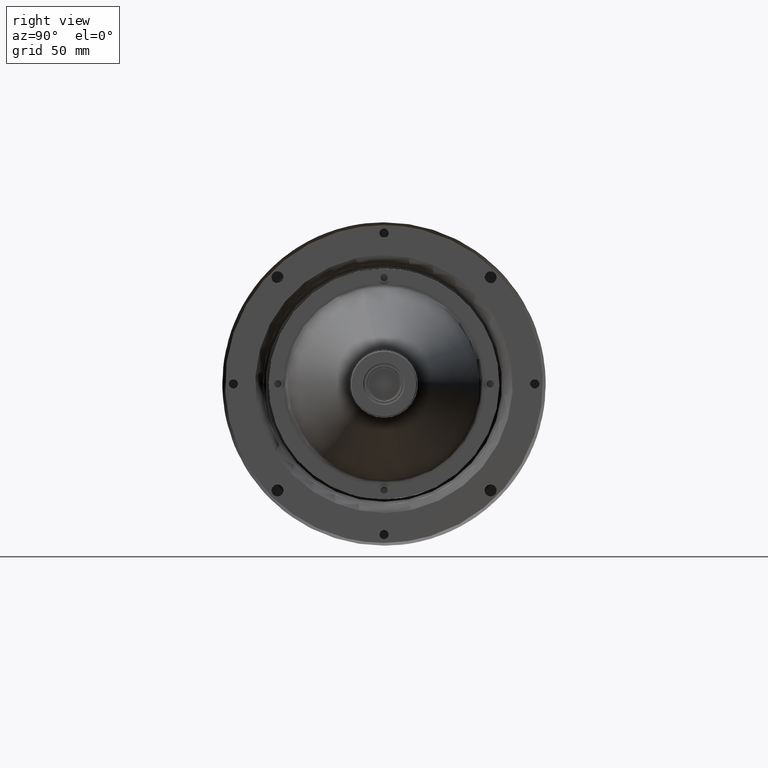
[diagram: clean part render]
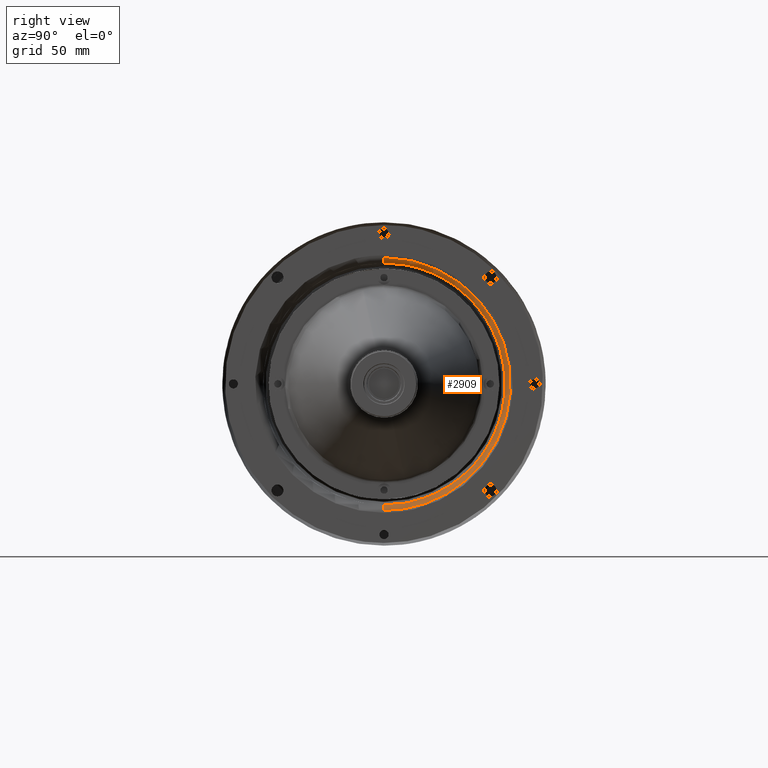
[diagram: same view with one face highlighted and labeled with its STEP entity id]
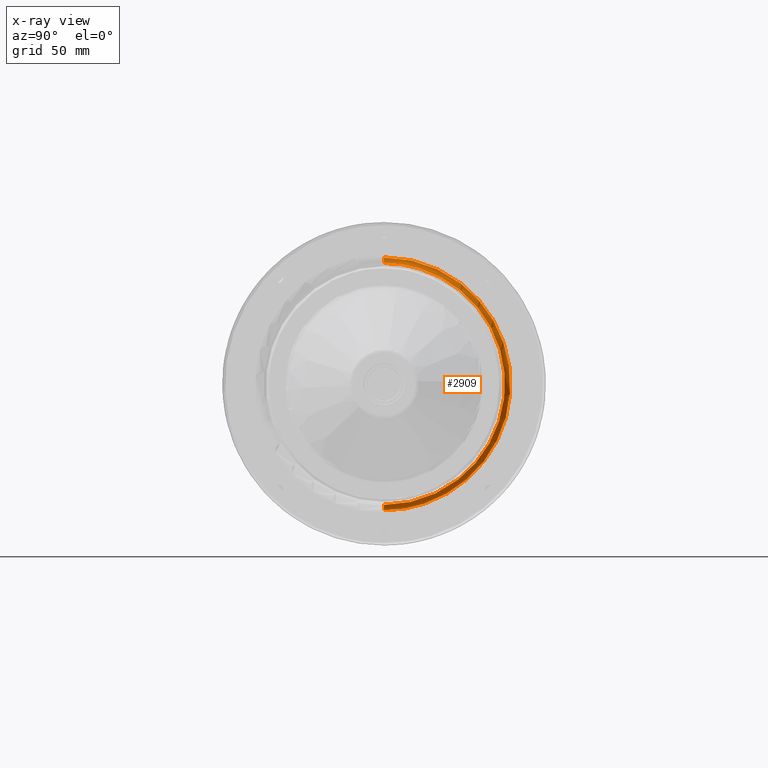
[diagram: x-ray of the same camera — body ghosted, the highlighted face saturated]
A machine part, right view. The second image highlights one B-rep face of the part: STEP entity #2909.
The next image is the same camera in x-ray: the body ghosted, the highlighted face saturated — about 0% of this face is hidden behind the body in this view.
In plain terms, the highlighted toroidal blend (fillet) surface has major radius 69 mm and minor (blend) radius 3 mm.
Its self-contained STEP definition (entity closure, byte-faithful):
#236 = CARTESIAN_POINT ( 'NONE',  ( 155.0389117158730130, 3.354295510470464705E-10, -2.223153871663934744 ) ) ;
#258 = CARTESIAN_POINT ( 'NONE',  ( 155.0389117160641206, 52.39784274181742774, -108.5845996421184054 ) ) ;
#1031 = B_SPLINE_CURVE_WITH_KNOTS ( 'NONE', 3,
 ( #13042, #17225, #4479, #1850, #14442, #13131, #6139, #10149, #11726, #15825, #258, #15998, #17404, #10411, #4566, #11637, #7617, #4649, #7531, #17491, #4740, #16084, #3334, #9012, #1054, #17581, #10845, #16523, #12341, #2375, #10933, #6228, #11029, #18202 ),
 .UNSPECIFIED., .F., .F.,
 ( 4, 2, 2, 2, 2, 2, 2, 2, 2, 2, 2, 2, 2, 2, 2, 2, 4 ),
 ( 0.000000000000000000, 0.06250000000000005551, 0.1250000000000001110, 0.1875000000000002220, 0.2500000000000003331, 0.3125000000000004441, 0.3750000000000005551, 0.4375000000000006661, 0.5000000000000007772, 0.5625000000000007772, 0.6250000000000006661, 0.6875000000000006661, 0.7500000000000005551, 0.8125000000000004441, 0.8750000000000004441, 0.9375000000000002220, 1.000000000000000000 ),
 .UNSPECIFIED. ) ;
#1054 = CARTESIAN_POINT ( 'NONE',  ( 155.0389117159672310, 49.93554760411596050, -24.85241126641997056 ) ) ;
#1153 = DIRECTION ( 'NONE',  ( 1.125025998286869992E-12, -1.667979245370121986E-28, -1.000000000000000000 ) ) ;
#1162 = CARTESIAN_POINT ( 'NONE',  ( 152.0389117161457477, 62.15059989655853911, -37.91456331197745300 ) ) ;
#1170 = AXIS2_PLACEMENT_3D ( 'NONE', #7315, #12707, #14202 ) ;
#1217 = CARTESIAN_POINT ( 'NONE',  ( 155.0389117158730130, 3.354295510470464705E-10, -2.223153871663934744 ) ) ;
#1258 = CARTESIAN_POINT ( 'NONE',  ( 152.0389117160635806, 22.62515995098180710, -2.882432523093848786 ) ) ;
#1352 = CARTESIAN_POINT ( 'NONE',  ( 152.0389117160403316, 4.968528497421182522, 0.7451102337029836820 ) ) ;
#1465 = CIRCLE ( 'NONE', #1170, 2.999999999849428889 ) ;
#1515 = VERTEX_POINT ( 'NONE', #5938 ) ;
#1554 = CARTESIAN_POINT ( 'NONE',  ( 152.0389117160179921, 0.4622198219536600150, 0.7752979427080239905 ) ) ;
#1705 = CARTESIAN_POINT ( 'NONE',  ( 152.0389117160949866, 2.190188772344439839E-08, -137.2231538718500019 ) ) ;
#1850 = CARTESIAN_POINT ( 'NONE',  ( 155.0389117160523540, 17.07686416184507650, -132.1212050081896336 ) ) ;
#1991 = ORIENTED_EDGE ( 'NONE', *, *, #6939, .F. ) ;
#2375 = CARTESIAN_POINT ( 'NONE',  ( 155.0389117159151340, 21.64145739248802158, -5.723333467530602903 ) ) ;
#2456 = EDGE_LOOP ( 'NONE', ( #3704, #3794, #5463, #4708, #1991, #12578 ) ) ;
#2571 = CARTESIAN_POINT ( 'NONE',  ( 152.0389117161039962, 45.86441879428804214, -16.47604943235702990 ) ) ;
#2851 = CARTESIAN_POINT ( 'NONE',  ( 152.0389117161971626, 68.52654866774065567, -77.46544021909672040 ) ) ;
#2909 = ADVANCED_FACE ( 'NONE', ( #9544 ), #8133, .T. ) ;
#3145 = CIRCLE ( 'NONE', #9070, 2.999999999849428889 ) ;
#3334 = CARTESIAN_POINT ( 'NONE',  ( 155.0389117159872114, 57.42352635138558270, -35.40366499637420361 ) ) ;
#3370 = CARTESIAN_POINT ( 'NONE',  ( 152.0389117162070534, 17.85308526480040570, -135.0256618765632766 ) ) ;
#3479 = VERTEX_POINT ( 'NONE', #1705 ) ;
#3553 = CARTESIAN_POINT ( 'NONE',  ( 152.0389117162102366, 22.18694539316939895, -133.7139714214603430 ) ) ;
#3704 = ORIENTED_EDGE ( 'NONE', *, *, #9477, .T. ) ;
#3794 = ORIENTED_EDGE ( 'NONE', *, *, #12763, .T. ) ;
#4023 = CARTESIAN_POINT ( 'NONE',  ( 155.0389117100305043, 0.4421233644767385007, -2.224634744946280218 ) ) ;
#4058 = DIRECTION ( 'NONE',  ( 1.000000000000000000, -1.081715141931460168E-12, 1.125025998286869992E-12 ) ) ;
#4067 = CARTESIAN_POINT ( 'NONE',  ( 152.0389117162173989, 34.51217049214734089, -128.1415802290879640 ) ) ;
#4350 = CARTESIAN_POINT ( 'NONE',  ( 152.0389117162192747, 54.77956287676636293, -110.4192107996645120 ) ) ;
#4479 = CARTESIAN_POINT ( 'NONE',  ( 155.0389117160451065, 8.620852173580070499, -133.7995302311530850 ) ) ;
#4566 = CARTESIAN_POINT ( 'NONE',  ( 155.0389117160505066, 63.84049480683034972, -85.51394481661874636 ) ) ;
#4649 = CARTESIAN_POINT ( 'NONE',  ( 155.0389117160288208, 66.01406746429347550, -64.13376204654097990 ) ) ;
#4708 = ORIENTED_EDGE ( 'NONE', *, *, #6814, .T. ) ;
#4740 = CARTESIAN_POINT ( 'NONE',  ( 155.0389117160061971, 62.71412207922728754, -47.21079749490988320 ) ) ;
#4952 = DIRECTION ( 'NONE',  ( 1.000000000000000000, -1.081715141931449868E-12, 0.000000000000000000 ) ) ;
#4957 = CARTESIAN_POINT ( 'NONE',  ( 155.0389117100305043, 0.4421233644767385007, -2.224634744946280218 ) ) ;
#5044 = CARTESIAN_POINT ( 'NONE',  ( 152.0389117161994648, 9.012709092967535085, -136.7802746106165728 ) ) ;
#5462 = CARTESIAN_POINT ( 'NONE',  ( 152.0389117162203547, 45.51674424379907435, -120.2763355484895840 ) ) ;
#5463 = ORIENTED_EDGE ( 'NONE', *, *, #10866, .T. ) ;
#5746 = CARTESIAN_POINT ( 'NONE',  ( 152.0389117160573846, 18.30018386531991936, -1.541739672135786110 ) ) ;
#5938 = CARTESIAN_POINT ( 'NONE',  ( 152.0389117160234775, -2.869615815090440053E-08, 0.7768461278715170781 ) ) ;
#5944 = CARTESIAN_POINT ( 'NONE',  ( 152.0389117160234775, -2.869615815090440053E-08, 0.7768461278715170781 ) ) ;
#6139 = CARTESIAN_POINT ( 'NONE',  ( 155.0389117160622163, 33.01164133225681496, -125.5364312619241787 ) ) ;
#6228 = CARTESIAN_POINT ( 'NONE',  ( 155.0389117158981378, 9.059944320917518112, -2.705998580028877942 ) ) ;
#6263 = CARTESIAN_POINT ( 'NONE',  ( 152.0389117162154093, 30.51659011551170053, -130.2718884030641675 ) ) ;
#6356 = DIRECTION ( 'NONE',  ( -1.081715141931460168E-12, -1.000000000000000000, -1.216957657413464300E-24 ) ) ;
#6814 = EDGE_CURVE ( 'NONE', #17819, #3479, #15424, .T. ) ;
#6855 = CARTESIAN_POINT ( 'NONE',  ( 152.0389117161769263, 68.58692368446642718, -59.44012314566879951 ) ) ;
#6939 = EDGE_CURVE ( 'NONE', #9457, #3479, #3145, .T. ) ;
#6951 = CARTESIAN_POINT ( 'NONE',  ( 152.0389117161250567, 55.06099831131574973, -26.39500313360558792 ) ) ;
#7043 = CARTESIAN_POINT ( 'NONE',  ( 152.0389117161180650, 52.20534519388775863, -22.88101384291218565 ) ) ;
#7235 = CARTESIAN_POINT ( 'NONE',  ( 152.0389117161950878, 4.506409788409812656, -137.2231538718449428 ) ) ;
#7315 = CARTESIAN_POINT ( 'NONE',  ( 155.0389117158843817, 5.031259976862470610E-10, 0.7768461283534922046 ) ) ;
#7531 = CARTESIAN_POINT ( 'NONE',  ( 155.0389117160235344, 65.60488352848334159, -59.82199407719066642 ) ) ;
#7617 = CARTESIAN_POINT ( 'NONE',  ( 155.0389117160385126, 65.98519209863447088, -72.75467154107666090 ) ) ;
#8133 = TOROIDAL_SURFACE ( 'NONE', #13199, 69.00000000014780710, 2.999999999849420007 ) ;
#8247 = CARTESIAN_POINT ( 'NONE',  ( 152.0389117160179921, 0.4622198219536600150, 0.7752979427080239905 ) ) ;
#8435 = CARTESIAN_POINT ( 'NONE',  ( 152.0389117160831347, 34.91277995728437133, -8.537263371234111275 ) ) ;
#8473 = B_SPLINE_CURVE_WITH_KNOTS ( 'NONE', 3,
 ( #4023, #9693, #15376, #1217 ),
 .UNSPECIFIED., .F., .F.,
 ( 4, 4 ),
 ( 0.000000000000000000, 1.000000000000000000 ),
 .UNSPECIFIED. ) ;
#8527 = CARTESIAN_POINT ( 'NONE',  ( 152.0389117162085597, 65.41613639384227952, -90.62933222819918910 ) ) ;
#9012 = CARTESIAN_POINT ( 'NONE',  ( 155.0389117159739669, 52.66704188754361837, -28.21361841481807531 ) ) ;
#9070 = AXIS2_PLACEMENT_3D ( 'NONE', #13435, #6356, #4952 ) ;
#9457 = VERTEX_POINT ( 'NONE', #11284 ) ;
#9477 = EDGE_CURVE ( 'NONE', #16507, #16901, #8473, .T. ) ;
#9544 = FACE_OUTER_BOUND ( 'NONE', #2456, .T. ) ;
#9677 = CARTESIAN_POINT ( 'NONE',  ( 152.0389117160179921, 0.4622198219536600150, 0.7752979427080239905 ) ) ;
#9693 = CARTESIAN_POINT ( 'NONE',  ( 155.0389117158880765, 0.2947511143084872165, -2.223647499586721032 ) ) ;
#9843 = CARTESIAN_POINT ( 'NONE',  ( 152.0389117160352725, 0.3081488382281080685, 0.7763300623434054026 ) ) ;
#10149 = CARTESIAN_POINT ( 'NONE',  ( 155.0389117160646038, 40.18571603126186886, -120.7558908622609124 ) ) ;
#10411 = CARTESIAN_POINT ( 'NONE',  ( 155.0389117160538603, 62.57195654363952286, -89.65515058181100017 ) ) ;
#10845 = CARTESIAN_POINT ( 'NONE',  ( 155.0389117159470231, 40.53672270470424621, -15.96079321886340097 ) ) ;
#10866 = EDGE_CURVE ( 'NONE', #1515, #17819, #16644, .T. ) ;
#10933 = CARTESIAN_POINT ( 'NONE',  ( 155.0389117159092507, 17.50452374744129713, -4.440931607222863065 ) ) ;
#11029 = CARTESIAN_POINT ( 'NONE',  ( 155.0389117158929650, 4.752505574624336759, -2.253509948378577210 ) ) ;
#11140 = CARTESIAN_POINT ( 'NONE',  ( 152.0389117162198716, 42.01233949685978075, -123.1437425359759601 ) ) ;
#11235 = CARTESIAN_POINT ( 'NONE',  ( 152.0389117161587649, 65.56476398022589080, -46.25569035306044441 ) ) ;
#11284 = CARTESIAN_POINT ( 'NONE',  ( 155.0389117065175242, 1.676973964645615335E-10, -134.2231538720079982 ) ) ;
#11329 = CARTESIAN_POINT ( 'NONE',  ( 152.0389117161651029, 66.86193108268730612, -50.59391959671438599 ) ) ;
#11424 = CARTESIAN_POINT ( 'NONE',  ( 152.0389117162163188, 59.80249388452919845, -102.9358238126696961 ) ) ;
#11637 = CARTESIAN_POINT ( 'NONE',  ( 155.0389117160428896, 65.54713350510071734, -77.06360170800576270 ) ) ;
#11726 = CARTESIAN_POINT ( 'NONE',  ( 155.0389117160651438, 43.53775535402905206, -118.0131537451709249 ) ) ;
#12029 = CARTESIAN_POINT ( 'NONE',  ( 152.0389117160949866, 2.190188772344439839E-08, -137.2231538718500019 ) ) ;
#12341 = CARTESIAN_POINT ( 'NONE',  ( 155.0389117159274974, 29.58670943714560764, -9.069059733467700113 ) ) ;
#12537 = CARTESIAN_POINT ( 'NONE',  ( 152.0389117162141588, 61.94617305666524487, -98.94740118346045676 ) ) ;
#12578 = ORIENTED_EDGE ( 'NONE', *, *, #12620, .T. ) ;
#12620 = EDGE_CURVE ( 'NONE', #9457, #16507, #1031, .T. ) ;
#12707 = DIRECTION ( 'NONE',  ( 1.081715141931460370E-12, 1.000000000000000000, -1.224646786977776721E-16 ) ) ;
#12719 = CARTESIAN_POINT ( 'NONE',  ( 152.0389117161824117, 69.01470689225686783, -63.94788056919372110 ) ) ;
#12763 = EDGE_CURVE ( 'NONE', #16901, #1515, #1465, .T. ) ;
#12819 = CARTESIAN_POINT ( 'NONE',  ( 152.0389117160764840, 30.93155982068660848, -6.380237250364253043 ) ) ;
#12931 = CARTESIAN_POINT ( 'NONE',  ( 152.0389117160351304, 0.1540743974677911132, 0.7768461279453936497 ) ) ;
#13042 = CARTESIAN_POINT ( 'NONE',  ( 155.0389117065175242, 1.676973964645615335E-10, -134.2231538720079982 ) ) ;
#13131 = CARTESIAN_POINT ( 'NONE',  ( 155.0389117160603405, 29.18978184232411976, -127.5741173403111048 ) ) ;
#13199 = AXIS2_PLACEMENT_3D ( 'NONE', #14023, #4058, #1153 ) ;
#13435 = CARTESIAN_POINT ( 'NONE',  ( 155.0389117160396495, 5.031175476233329391E-10, -137.2231538719421167 ) ) ;
#14023 = CARTESIAN_POINT ( 'NONE',  ( 155.0389117159620014, 5.031175476233329391E-10, -68.22315387179430957 ) ) ;
#14123 = CARTESIAN_POINT ( 'NONE',  ( 152.0389117160969477, 42.37930097218104919, -13.58523134257558240 ) ) ;
#14202 = DIRECTION ( 'NONE',  ( -1.000000000000000000, 1.081715141931449868E-12, 0.000000000000000000 ) ) ;
#14442 = CARTESIAN_POINT ( 'NONE',  ( 155.0389117160554235, 21.22229558795688220, -130.8665445735519199 ) ) ;
#15328 = CARTESIAN_POINT ( 'NONE',  ( 152.0389117160458170, 9.471759915602442348, 0.2720539405904418562 ) ) ;
#15376 = CARTESIAN_POINT ( 'NONE',  ( 155.0389117158879344, 0.1473755574080597708, -2.223153871495922029 ) ) ;
#15424 = B_SPLINE_CURVE_WITH_KNOTS ( 'NONE', 3,
 ( #8247, #1352, #15328, #5746, #1258, #12819, #8435, #14123, #2571, #7043, #6951, #18305, #1162, #11235, #11329, #6855, #12719, #16814, #2851, #18395, #8527, #12537, #11424, #4350, #18216, #5462, #11140, #4067, #6263, #3553, #3370, #5044, #7235, #12029 ),
 .UNSPECIFIED., .F., .F.,
 ( 4, 2, 2, 2, 2, 2, 2, 2, 2, 2, 2, 2, 2, 2, 2, 2, 4 ),
 ( 0.000000000000000000, 0.06250000000000001388, 0.1250000000000000000, 0.1874999999999999722, 0.2499999999999999722, 0.3124999999999999445, 0.3749999999999998890, 0.4374999999999999445, 0.4999999999999999445, 0.5624999999999998890, 0.6249999999999998890, 0.6874999999999998890, 0.7499999999999998890, 0.8125000000000000000, 0.8750000000000000000, 0.9375000000000000000, 1.000000000000000000 ),
 .UNSPECIFIED. ) ;
#15825 = CARTESIAN_POINT ( 'NONE',  ( 155.0389117160648880, 49.64389356119595931, -111.9274335335038444 ) ) ;
#15998 = CARTESIAN_POINT ( 'NONE',  ( 155.0389117160613068, 57.20238544552924509, -101.4265773099426582 ) ) ;
#16084 = CARTESIAN_POINT ( 'NONE',  ( 155.0389117159936916, 59.44839991739131335, -39.23232815164546849 ) ) ;
#16507 = VERTEX_POINT ( 'NONE', #4957 ) ;
#16523 = CARTESIAN_POINT ( 'NONE',  ( 155.0389117159338639, 33.39483304354833137, -11.13230211215201138 ) ) ;
#16644 = B_SPLINE_CURVE_WITH_KNOTS ( 'NONE', 3,
 ( #5944, #12931, #9843, #1554 ),
 .UNSPECIFIED., .F., .F.,
 ( 4, 4 ),
 ( 0.000000000000000000, 1.000000000000000000 ),
 .UNSPECIFIED. ) ;
#16814 = CARTESIAN_POINT ( 'NONE',  ( 152.0389117161925583, 68.98451901383688778, -72.96064958863266270 ) ) ;
#16901 = VERTEX_POINT ( 'NONE', #236 ) ;
#17225 = CARTESIAN_POINT ( 'NONE',  ( 155.0389117160409569, 4.310478926902042929, -134.2231538720927517 ) ) ;
#17404 = CARTESIAN_POINT ( 'NONE',  ( 155.0389117160591468, 59.25286117597042335, -97.61156436190276509 ) ) ;
#17491 = CARTESIAN_POINT ( 'NONE',  ( 155.0389117160121657, 63.95489060956774097, -51.36040807530866914 ) ) ;
#17581 = CARTESIAN_POINT ( 'NONE',  ( 155.0389117159538159, 43.87031366223068574, -18.72592356709993666 ) ) ;
#17819 = VERTEX_POINT ( 'NONE', #9677 ) ;
#18202 = CARTESIAN_POINT ( 'NONE',  ( 155.0389117100305043, 0.4421233644767385007, -2.224634744946280218 ) ) ;
#18216 = CARTESIAN_POINT ( 'NONE',  ( 152.0389117162201558, 51.90043418800021868, -113.9139916877562939 ) ) ;
#18305 = CARTESIAN_POINT ( 'NONE',  ( 152.0389117161389265, 60.03368662018303326, -33.91187001339727658 ) ) ;
#18395 = CARTESIAN_POINT ( 'NONE',  ( 152.0389117162051207, 66.74233548602624921, -86.29988983568260608 ) ) ;